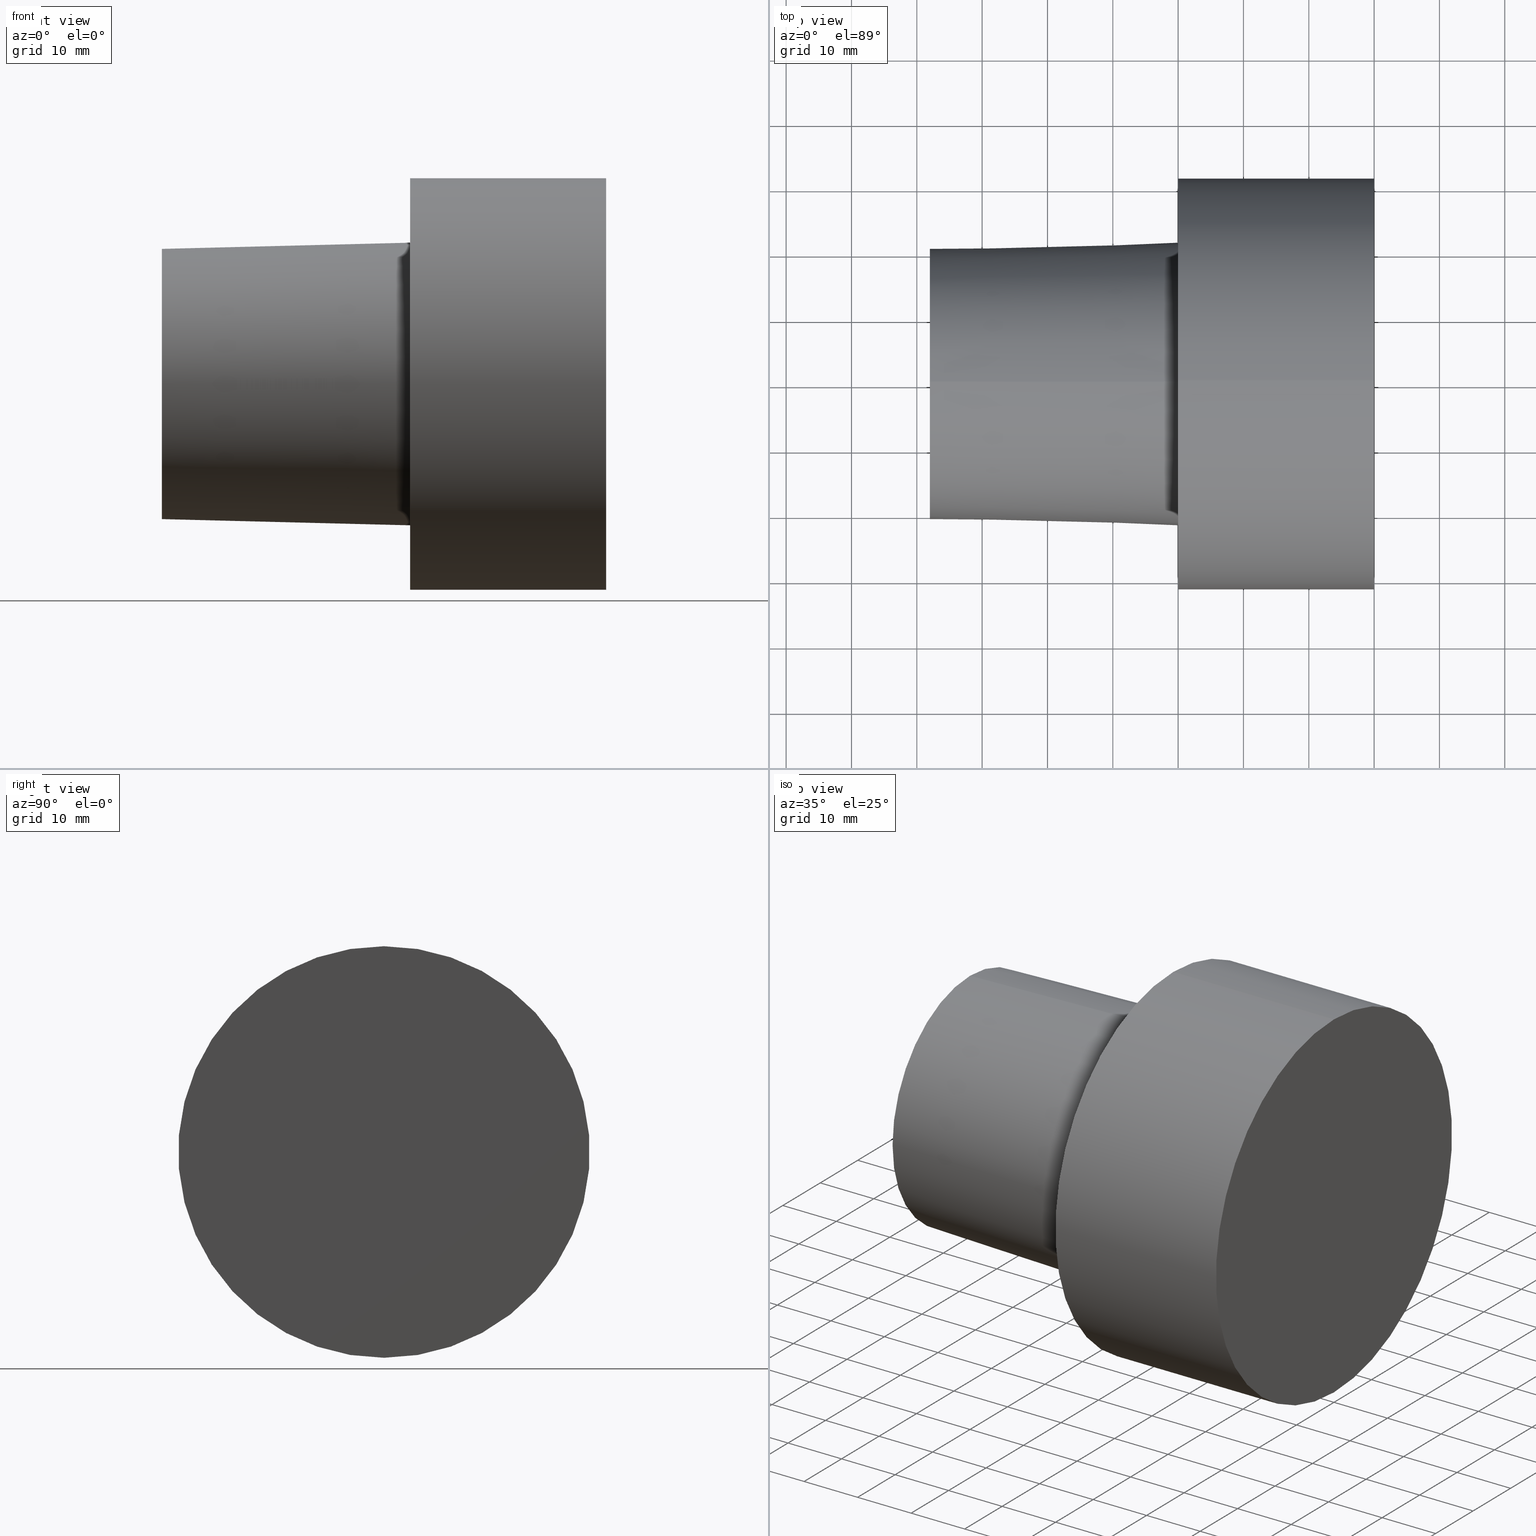
[diagram: canonical four-view strip — front | top / right | iso, engineering-drawing reading convention]
A machine part, canonical four-view strip (front | top / right | iso — engineering-drawing reading convention). The complete STEP part file that produces these views, byte-faithful:
ISO-10303-21;
HEADER;
FILE_DESCRIPTION (( 'STEP AP203' ),
    '1' );
FILE_NAME ('C6-F63-30.stp',
    '2022-03-11T15:30:14',
    ( '' ),
    ( '' ),
    'SwSTEP 2.0',
    'SolidWorks 2021',
    '' );
FILE_SCHEMA (( 'CONFIG_CONTROL_DESIGN' ));
ENDSEC;

DATA;
#1 = VERTEX_POINT ( 'NONE', #129 ) ;
#2 = SHAPE_DEFINITION_REPRESENTATION ( #151, #117 ) ;
#3 = ORIENTED_EDGE ( 'NONE', *, *, #248, .T. ) ;
#4 = DIRECTION ( 'NONE',  ( 1.000000000000000000, 0.000000000000000000, 0.000000000000000000 ) ) ;
#5 = DIRECTION ( 'NONE',  ( -1.000000000000000000, 0.000000000000000000, 0.000000000000000000 ) ) ;
#6 = ORIENTED_EDGE ( 'NONE', *, *, #194, .F. ) ;
#7 = ORIENTED_EDGE ( 'NONE', *, *, #242, .F. ) ;
#8 = DIRECTION ( 'NONE',  ( 0.000000000000000000, 0.000000000000000000, 1.000000000000000000 ) ) ;
#9 = AXIS2_PLACEMENT_3D ( 'NONE', #44, #26, #168 ) ;
#10 = SECURITY_CLASSIFICATION ( '', '', #187 ) ;
#11 = DIRECTION ( 'NONE',  ( 1.000000000000000000, 0.000000000000000000, 0.000000000000000000 ) ) ;
#12 = EDGE_CURVE ( 'NONE', #30, #21, #124, .T. ) ;
#13 = LINE ( 'NONE', #156, #84 ) ;
#14 = CC_DESIGN_PERSON_AND_ORGANIZATION_ASSIGNMENT ( #236, #42, ( #186 ) ) ;
#15 = PLANE ( 'NONE',  #157 ) ;
#16 = CARTESIAN_POINT ( 'NONE',  ( 29.99999996940000102, 0.000000000000000000, 0.000000000000000000 ) ) ;
#17 = DIRECTION ( 'NONE',  ( -1.000000000000000000, 0.000000000000000000, 0.000000000000000000 ) ) ;
#18 = PERSON_AND_ORGANIZATION ( #145, #132 ) ;
#19 = VERTEX_POINT ( 'NONE', #64 ) ;
#20 = PERSON_AND_ORGANIZATION ( #145, #132 ) ;
#21 = VERTEX_POINT ( 'NONE', #206 ) ;
#22 = AXIS2_PLACEMENT_3D ( 'NONE', #27, #113, #191 ) ;
#23 = AXIS2_PLACEMENT_3D ( 'NONE', #217, #99, #34 ) ;
#24 = ADVANCED_FACE ( 'NONE', ( #115 ), #39, .T. ) ;
#25 = CC_DESIGN_PERSON_AND_ORGANIZATION_ASSIGNMENT ( #240, #163, ( #43 ) ) ;
#26 = DIRECTION ( 'NONE',  ( -1.000000000000000000, 0.000000000000000000, 0.000000000000000000 ) ) ;
#27 = CARTESIAN_POINT ( 'NONE',  ( -37.99999996124000035, 20.68052847366897140, 0.000000000000000000 ) ) ;
#28 = LOCAL_TIME ( 9, 30, 14.00000000000000000, #222 ) ;
#29 = ADVANCED_FACE ( 'NONE', ( #69 ), #207, .T. ) ;
#30 = VERTEX_POINT ( 'NONE', #245 ) ;
#31 = ORIENTED_EDGE ( 'NONE', *, *, #190, .F. ) ;
#32 = DIRECTION ( 'NONE',  ( -1.000000000000000000, 0.000000000000000000, 0.000000000000000000 ) ) ;
#33 = CARTESIAN_POINT ( 'NONE',  ( -37.99999996124000035, 0.000000000000000000, 0.000000000000000000 ) ) ;
#34 = DIRECTION ( 'NONE',  ( 0.000000000000000000, 0.000000000000000000, 1.000000000000000000 ) ) ;
#35 = AXIS2_PLACEMENT_3D ( 'NONE', #213, #133, #36 ) ;
#36 = DIRECTION ( 'NONE',  ( 1.000000000000000000, 0.000000000000000000, 0.000000000000000000 ) ) ;
#37 = CARTESIAN_POINT ( 'NONE',  ( 0.000000000000000000, 0.000000000000000000, -21.63061196907898065 ) ) ;
#38 = ORIENTED_EDGE ( 'NONE', *, *, #242, .T. ) ;
#39 = CONICAL_SURFACE ( 'NONE', #46, 21.63061196907898065, 0.02499698951949481940 ) ;
#40 = AXIS2_PLACEMENT_3D ( 'NONE', #16, #17, #76 ) ;
#41 = COORDINATED_UNIVERSAL_TIME_OFFSET ( 6, 0, .BEHIND. ) ;
#42 = PERSON_AND_ORGANIZATION_ROLE ( 'creator' ) ;
#43 = PRODUCT_DEFINITION ( 'UNKNOWN', '', #186, #53 ) ;
#44 = CARTESIAN_POINT ( 'NONE',  ( 0.000000000000000000, 0.000000000000000000, 0.000000000000000000 ) ) ;
#45 = FACE_OUTER_BOUND ( 'NONE', #237, .T. ) ;
#46 = AXIS2_PLACEMENT_3D ( 'NONE', #116, #4, #247 ) ;
#47 = ORIENTED_EDGE ( 'NONE', *, *, #202, .T. ) ;
#48 = CC_DESIGN_DATE_AND_TIME_ASSIGNMENT ( #109, #81, ( #43 ) ) ;
#49 = PLANE ( 'NONE',  #180 ) ;
#50 = ORIENTED_EDGE ( 'NONE', *, *, #202, .F. ) ;
#51 = AXIS2_PLACEMENT_3D ( 'NONE', #249, #32, #127 ) ;
#52 = DIRECTION ( 'NONE',  ( 0.9996875915253454759, 0.000000000000000000, -0.02499438637482059161 ) ) ;
#53 = DESIGN_CONTEXT ( 'detailed design', #79, 'design' ) ;
#54 = DIRECTION ( 'NONE',  ( 0.9996875915253454759, 3.060929527057623083E-18, 0.02499438637482059161 ) ) ;
#55 = LOCAL_TIME ( 9, 30, 14.00000000000000000, #139 ) ;
#56 = CARTESIAN_POINT ( 'NONE',  ( 0.000000000000000000, 0.000000000000000000, 0.000000000000000000 ) ) ;
#57 = APPLICATION_PROTOCOL_DEFINITION ( 'international standard', 'config_control_design', 1994, #79 ) ;
#58 = UNCERTAINTY_MEASURE_WITH_UNIT (LENGTH_MEASURE( 1.000000000000000082E-05 ), #153, 'distance_accuracy_value', 'NONE');
#59 = PERSON_AND_ORGANIZATION ( #145, #132 ) ;
#60 = ORIENTED_EDGE ( 'NONE', *, *, #12, .T. ) ;
#61 = DATE_AND_TIME ( #223, #63 ) ;
#62 = PERSON_AND_ORGANIZATION ( #145, #132 ) ;
#63 = LOCAL_TIME ( 9, 30, 14.00000000000000000, #221 ) ;
#64 = CARTESIAN_POINT ( 'NONE',  ( 0.000000000000000000, 0.000000000000000000, 31.49999996787000001 ) ) ;
#65 = APPLICATION_CONTEXT ( 'configuration controlled 3d designs of mechanical parts and assemblies' ) ;
#66 = DIRECTION ( 'NONE',  ( -1.000000000000000000, 0.000000000000000000, 0.000000000000000000 ) ) ;
#67 = LINE ( 'NONE', #147, #107 ) ;
#68 = AXIS2_PLACEMENT_3D ( 'NONE', #166, #66, #146 ) ;
#69 = FACE_OUTER_BOUND ( 'NONE', #226, .T. ) ;
#70 = EDGE_CURVE ( 'NONE', #19, #205, #204, .T. ) ;
#71 = ORIENTED_EDGE ( 'NONE', *, *, #101, .F. ) ;
#72 = CARTESIAN_POINT ( 'NONE',  ( 29.99999996940000102, 3.857637413379370248E-15, -31.49999996787000001 ) ) ;
#73 =( NAMED_UNIT ( * ) SI_UNIT ( $, .STERADIAN. ) SOLID_ANGLE_UNIT ( ) );
#74 = APPROVAL_PERSON_ORGANIZATION ( #18, #143, #104 ) ;
#75 = LINE ( 'NONE', #37, #227 ) ;
#76 = DIRECTION ( 'NONE',  ( 0.000000000000000000, 0.000000000000000000, 1.000000000000000000 ) ) ;
#77 = CALENDAR_DATE ( 2022, 11, 3 ) ;
#78 = COORDINATED_UNIVERSAL_TIME_OFFSET ( 6, 0, .BEHIND. ) ;
#79 = APPLICATION_CONTEXT ( 'configuration controlled 3d designs of mechanical parts and assemblies' ) ;
#80 = ORIENTED_EDGE ( 'NONE', *, *, #248, .F. ) ;
#81 = DATE_TIME_ROLE ( 'creation_date' ) ;
#82 = ADVANCED_FACE ( 'NONE', ( #45 ), #49, .F. ) ;
#83 = AXIS2_PLACEMENT_3D ( 'NONE', #193, #5, #89 ) ;
#84 = VECTOR ( 'NONE', #252, 1000.000000000000000 ) ;
#85 = CALENDAR_DATE ( 2022, 11, 3 ) ;
#86 = APPROVAL_STATUS ( 'not_yet_approved' ) ;
#87 = EDGE_LOOP ( 'NONE', ( #6, #167, #60, #50 ) ) ;
#88 = DIRECTION ( 'NONE',  ( -1.000000000000000000, 0.000000000000000000, 0.000000000000000000 ) ) ;
#89 = DIRECTION ( 'NONE',  ( 0.000000000000000000, 0.000000000000000000, 1.000000000000000000 ) ) ;
#90 = EDGE_LOOP ( 'NONE', ( #148, #71, #47, #208 ) ) ;
#91 = CC_DESIGN_PERSON_AND_ORGANIZATION_ASSIGNMENT ( #218, #140, ( #224 ) ) ;
#92 = PLANE ( 'NONE',  #22 ) ;
#93 = AXIS2_PLACEMENT_3D ( 'NONE', #33, #214, #100 ) ;
#94 = CC_DESIGN_PERSON_AND_ORGANIZATION_ASSIGNMENT ( #141, #179, ( #10 ) ) ;
#95 = LINE ( 'NONE', #120, #169 ) ;
#96 = FACE_OUTER_BOUND ( 'NONE', #144, .T. ) ;
#97 = DIRECTION ( 'NONE',  ( 0.000000000000000000, 0.000000000000000000, -1.000000000000000000 ) ) ;
#98 = CIRCLE ( 'NONE', #83, 20.68052847366897140 ) ;
#99 = DIRECTION ( 'NONE',  ( -1.000000000000000000, 0.000000000000000000, 0.000000000000000000 ) ) ;
#100 = DIRECTION ( 'NONE',  ( 0.000000000000000000, 0.000000000000000000, 1.000000000000000000 ) ) ;
#101 = EDGE_CURVE ( 'NONE', #170, #138, #98, .T. ) ;
#102 = APPROVAL_DATE_TIME ( #137, #210 ) ;
#103 = ORIENTED_EDGE ( 'NONE', *, *, #114, .T. ) ;
#104 = APPROVAL_ROLE ( '' ) ;
#105 = ORIENTED_EDGE ( 'NONE', *, *, #194, .T. ) ;
#106 = PERSON_AND_ORGANIZATION_ROLE ( 'design_supplier' ) ;
#107 = VECTOR ( 'NONE', #196, 1000.000000000000000 ) ;
#108 = CIRCLE ( 'NONE', #122, 31.49999996787000001 ) ;
#109 = DATE_AND_TIME ( #85, #135 ) ;
#110 = ORIENTED_EDGE ( 'NONE', *, *, #101, .T. ) ;
#111 = CIRCLE ( 'NONE', #68, 31.49999996787000001 ) ;
#112 = CC_DESIGN_PERSON_AND_ORGANIZATION_ASSIGNMENT ( #62, #106, ( #186 ) ) ;
#113 = DIRECTION ( 'NONE',  ( 1.000000000000000000, 0.000000000000000000, 0.000000000000000000 ) ) ;
#114 = EDGE_CURVE ( 'NONE', #228, #1, #111, .T. ) ;
#115 = FACE_OUTER_BOUND ( 'NONE', #90, .T. ) ;
#116 = CARTESIAN_POINT ( 'NONE',  ( 0.000000000000000000, 0.000000000000000000, 0.000000000000000000 ) ) ;
#117 = ADVANCED_BREP_SHAPE_REPRESENTATION ( 'C6-F63-30', ( #232, #35 ), #212 ) ;
#118 = DIRECTION ( 'NONE',  ( 0.000000000000000000, 0.000000000000000000, 1.000000000000000000 ) ) ;
#119 = CARTESIAN_POINT ( 'NONE',  ( 0.000000000000000000, 0.000000000000000000, 0.000000000000000000 ) ) ;
#120 = CARTESIAN_POINT ( 'NONE',  ( 0.000000000000000000, 2.648985971153096932E-15, 21.63061196907898065 ) ) ;
#121 = APPROVAL_ROLE ( '' ) ;
#122 = AXIS2_PLACEMENT_3D ( 'NONE', #119, #155, #230 ) ;
#123 = DATE_AND_TIME ( #243, #55 ) ;
#124 = CIRCLE ( 'NONE', #51, 21.63061196907898065 ) ;
#125 = CC_DESIGN_APPROVAL ( #143, ( #186 ) ) ;
#126 = ADVANCED_FACE ( 'NONE', ( #128 ), #92, .F. ) ;
#127 = DIRECTION ( 'NONE',  ( 0.000000000000000000, 0.000000000000000000, 1.000000000000000000 ) ) ;
#128 = FACE_OUTER_BOUND ( 'NONE', #182, .T. ) ;
#129 = CARTESIAN_POINT ( 'NONE',  ( 29.99999996940000102, 0.000000000000000000, 31.49999996787000001 ) ) ;
#130 = DIRECTION ( 'NONE',  ( -1.000000000000000000, 0.000000000000000000, 0.000000000000000000 ) ) ;
#131 = EDGE_LOOP ( 'NONE', ( #239, #38 ) ) ;
#132 = ORGANIZATION ( 'UNSPECIFIED', 'UNSPECIFIED', '' ) ;
#133 = DIRECTION ( 'NONE',  ( 0.000000000000000000, 0.000000000000000000, 1.000000000000000000 ) ) ;
#134 = EDGE_CURVE ( 'NONE', #1, #19, #67, .T. ) ;
#135 = LOCAL_TIME ( 9, 30, 14.00000000000000000, #78 ) ;
#136 = DIRECTION ( 'NONE',  ( 1.000000000000000000, 0.000000000000000000, 0.000000000000000000 ) ) ;
#137 = DATE_AND_TIME ( #220, #158 ) ;
#138 = VERTEX_POINT ( 'NONE', #198 ) ;
#139 = COORDINATED_UNIVERSAL_TIME_OFFSET ( 6, 0, .BEHIND. ) ;
#140 = PERSON_AND_ORGANIZATION_ROLE ( 'design_owner' ) ;
#141 = PERSON_AND_ORGANIZATION ( #145, #132 ) ;
#142 = CLOSED_SHELL ( 'NONE', ( #233, #176, #24, #126, #82, #171, #29 ) ) ;
#143 = APPROVAL ( #86, 'UNSPECIFIED' ) ;
#144 = EDGE_LOOP ( 'NONE', ( #80, #103, #183, #7 ) ) ;
#145 = PERSON ( 'UNSPECIFIED', 'UNSPECIFIED', 'UNSPECIFIED', ('UNSPECIFIED'), ('UNSPECIFIED'), ('UNSPECIFIED') ) ;
#146 = DIRECTION ( 'NONE',  ( 0.000000000000000000, 0.000000000000000000, 1.000000000000000000 ) ) ;
#147 = CARTESIAN_POINT ( 'NONE',  ( -37.99999996124000035, 0.000000000000000000, 31.49999996787000001 ) ) ;
#148 = ORIENTED_EDGE ( 'NONE', *, *, #154, .F. ) ;
#149 = EDGE_LOOP ( 'NONE', ( #209, #160 ) ) ;
#150 = FACE_OUTER_BOUND ( 'NONE', #87, .T. ) ;
#151 = PRODUCT_DEFINITION_SHAPE ( 'NONE', 'NONE',  #43 ) ;
#152 = MECHANICAL_CONTEXT ( 'NONE', #65, 'mechanical' ) ;
#153 =( LENGTH_UNIT ( ) NAMED_UNIT ( * ) SI_UNIT ( .MILLI., .METRE. ) );
#154 = EDGE_CURVE ( 'NONE', #138, #30, #95, .T. ) ;
#155 = DIRECTION ( 'NONE',  ( -1.000000000000000000, 0.000000000000000000, 0.000000000000000000 ) ) ;
#156 = CARTESIAN_POINT ( 'NONE',  ( -37.99999996124000035, 3.857637413379370248E-15, -31.49999996787000001 ) ) ;
#157 = AXIS2_PLACEMENT_3D ( 'NONE', #175, #136, #173 ) ;
#158 = LOCAL_TIME ( 9, 30, 14.00000000000000000, #41 ) ;
#159 = APPROVAL_DATE_TIME ( #123, #143 ) ;
#160 = ORIENTED_EDGE ( 'NONE', *, *, #12, .F. ) ;
#161 = CONICAL_SURFACE ( 'NONE', #197, 21.63061196907898065, 0.02499698951949481940 ) ;
#162 = DATE_TIME_ROLE ( 'classification_date' ) ;
#163 = PERSON_AND_ORGANIZATION_ROLE ( 'creator' ) ;
#164 = DIRECTION ( 'NONE',  ( 0.000000000000000000, 0.000000000000000000, 1.000000000000000000 ) ) ;
#165 = CIRCLE ( 'NONE', #40, 31.49999996787000001 ) ;
#166 = CARTESIAN_POINT ( 'NONE',  ( 29.99999996940000102, 0.000000000000000000, 0.000000000000000000 ) ) ;
#167 = ORIENTED_EDGE ( 'NONE', *, *, #154, .T. ) ;
#168 = DIRECTION ( 'NONE',  ( 0.000000000000000000, 0.000000000000000000, 1.000000000000000000 ) ) ;
#169 = VECTOR ( 'NONE', #54, 1000.000000000000114 ) ;
#170 = VERTEX_POINT ( 'NONE', #234 ) ;
#171 = ADVANCED_FACE ( 'NONE', ( #150 ), #161, .T. ) ;
#172 = FACE_OUTER_BOUND ( 'NONE', #131, .T. ) ;
#173 = DIRECTION ( 'NONE',  ( 0.000000000000000000, 1.000000000000000000, 0.000000000000000000 ) ) ;
#174 = AXIS2_PLACEMENT_3D ( 'NONE', #253, #195, #118 ) ;
#175 = CARTESIAN_POINT ( 'NONE',  ( 0.000000000000000000, 31.49999996787000001, 0.000000000000000000 ) ) ;
#176 = ADVANCED_FACE ( 'NONE', ( #178, #172 ), #15, .F. ) ;
#177 = CYLINDRICAL_SURFACE ( 'NONE', #93, 31.49999996787000001 ) ;
#178 = FACE_BOUND ( 'NONE', #149, .T. ) ;
#179 = PERSON_AND_ORGANIZATION_ROLE ( 'classification_officer' ) ;
#180 = AXIS2_PLACEMENT_3D ( 'NONE', #188, #130, #8 ) ;
#181 = APPROVAL_PERSON_ORGANIZATION ( #59, #210, #121 ) ;
#182 = EDGE_LOOP ( 'NONE', ( #110, #105 ) ) ;
#183 = ORIENTED_EDGE ( 'NONE', *, *, #134, .T. ) ;
#184 = APPROVAL_STATUS ( 'not_yet_approved' ) ;
#185 = AXIS2_PLACEMENT_3D ( 'NONE', #225, #88, #164 ) ;
#186 = PRODUCT_DEFINITION_FORMATION_WITH_SPECIFIED_SOURCE ( 'ANY', '', #224, .NOT_KNOWN. ) ;
#187 = SECURITY_CLASSIFICATION_LEVEL ( 'unclassified' ) ;
#188 = CARTESIAN_POINT ( 'NONE',  ( 29.99999996940000102, 0.000000000000000000, 0.000000000000000000 ) ) ;
#189 = CIRCLE ( 'NONE', #174, 21.63061196907898065 ) ;
#190 = EDGE_CURVE ( 'NONE', #1, #228, #165, .T. ) ;
#191 = DIRECTION ( 'NONE',  ( 0.000000000000000000, 1.000000000000000000, 0.000000000000000000 ) ) ;
#192 = ORIENTED_EDGE ( 'NONE', *, *, #134, .F. ) ;
#193 = CARTESIAN_POINT ( 'NONE',  ( -37.99999996124000035, 0.000000000000000000, 0.000000000000000000 ) ) ;
#194 = EDGE_CURVE ( 'NONE', #138, #170, #250, .T. ) ;
#195 = DIRECTION ( 'NONE',  ( -1.000000000000000000, 0.000000000000000000, 0.000000000000000000 ) ) ;
#196 = DIRECTION ( 'NONE',  ( -1.000000000000000000, 0.000000000000000000, 0.000000000000000000 ) ) ;
#197 = AXIS2_PLACEMENT_3D ( 'NONE', #56, #11, #97 ) ;
#198 = CARTESIAN_POINT ( 'NONE',  ( -37.99999996124000035, 2.590810135574270981E-15, 20.68052847366897140 ) ) ;
#199 = DATE_AND_TIME ( #77, #28 ) ;
#200 = ORIENTED_EDGE ( 'NONE', *, *, #190, .T. ) ;
#201 = APPROVAL_DATE_TIME ( #199, #254 ) ;
#202 = EDGE_CURVE ( 'NONE', #170, #21, #75, .T. ) ;
#203 = APPROVAL_ROLE ( '' ) ;
#204 = CIRCLE ( 'NONE', #9, 31.49999996787000001 ) ;
#205 = VERTEX_POINT ( 'NONE', #251 ) ;
#206 = CARTESIAN_POINT ( 'NONE',  ( 0.000000000000000000, 0.000000000000000000, -21.63061196907898065 ) ) ;
#207 = CYLINDRICAL_SURFACE ( 'NONE', #185, 31.49999996787000001 ) ;
#208 = ORIENTED_EDGE ( 'NONE', *, *, #244, .T. ) ;
#209 = ORIENTED_EDGE ( 'NONE', *, *, #244, .F. ) ;
#210 = APPROVAL ( #184, 'UNSPECIFIED' ) ;
#211 = CC_DESIGN_SECURITY_CLASSIFICATION ( #10, ( #186 ) ) ;
#212 =( GEOMETRIC_REPRESENTATION_CONTEXT ( 3 ) GLOBAL_UNCERTAINTY_ASSIGNED_CONTEXT ( ( #58 ) ) GLOBAL_UNIT_ASSIGNED_CONTEXT ( ( #153, #231, #73 ) ) REPRESENTATION_CONTEXT ( 'NONE', 'WORKASPACE' ) );
#213 = CARTESIAN_POINT ( 'NONE',  ( 0.000000000000000000, 0.000000000000000000, 0.000000000000000000 ) ) ;
#214 = DIRECTION ( 'NONE',  ( -1.000000000000000000, 0.000000000000000000, 0.000000000000000000 ) ) ;
#215 = CC_DESIGN_APPROVAL ( #210, ( #10 ) ) ;
#216 = APPLICATION_PROTOCOL_DEFINITION ( 'international standard', 'config_control_design', 1994, #65 ) ;
#217 = CARTESIAN_POINT ( 'NONE',  ( -37.99999996124000035, 0.000000000000000000, 0.000000000000000000 ) ) ;
#218 = PERSON_AND_ORGANIZATION ( #145, #132 ) ;
#219 = ORIENTED_EDGE ( 'NONE', *, *, #114, .F. ) ;
#220 = CALENDAR_DATE ( 2022, 11, 3 ) ;
#221 = COORDINATED_UNIVERSAL_TIME_OFFSET ( 6, 0, .BEHIND. ) ;
#222 = COORDINATED_UNIVERSAL_TIME_OFFSET ( 6, 0, .BEHIND. ) ;
#223 = CALENDAR_DATE ( 2022, 11, 3 ) ;
#224 = PRODUCT ( 'C6-F63-30', 'C6-F63-30', '', ( #152 ) ) ;
#225 = CARTESIAN_POINT ( 'NONE',  ( -37.99999996124000035, 0.000000000000000000, 0.000000000000000000 ) ) ;
#226 = EDGE_LOOP ( 'NONE', ( #200, #3, #229, #192 ) ) ;
#227 = VECTOR ( 'NONE', #52, 1000.000000000000114 ) ;
#228 = VERTEX_POINT ( 'NONE', #72 ) ;
#229 = ORIENTED_EDGE ( 'NONE', *, *, #70, .F. ) ;
#230 = DIRECTION ( 'NONE',  ( 0.000000000000000000, 0.000000000000000000, 1.000000000000000000 ) ) ;
#231 =( NAMED_UNIT ( * ) PLANE_ANGLE_UNIT ( ) SI_UNIT ( $, .RADIAN. ) );
#232 = MANIFOLD_SOLID_BREP ( 'Scale1', #142 ) ;
#233 = ADVANCED_FACE ( 'NONE', ( #96 ), #177, .T. ) ;
#234 = CARTESIAN_POINT ( 'NONE',  ( -37.99999996124000035, 0.000000000000000000, -20.68052847366897140 ) ) ;
#235 = PRODUCT_RELATED_PRODUCT_CATEGORY ( 'detail', '', ( #224 ) ) ;
#236 = PERSON_AND_ORGANIZATION ( #145, #132 ) ;
#237 = EDGE_LOOP ( 'NONE', ( #31, #219 ) ) ;
#238 = APPROVAL_STATUS ( 'not_yet_approved' ) ;
#239 = ORIENTED_EDGE ( 'NONE', *, *, #70, .T. ) ;
#240 = PERSON_AND_ORGANIZATION ( #145, #132 ) ;
#241 = APPROVAL_PERSON_ORGANIZATION ( #20, #254, #203 ) ;
#242 = EDGE_CURVE ( 'NONE', #205, #19, #108, .T. ) ;
#243 = CALENDAR_DATE ( 2022, 11, 3 ) ;
#244 = EDGE_CURVE ( 'NONE', #21, #30, #189, .T. ) ;
#245 = CARTESIAN_POINT ( 'NONE',  ( 0.000000000000000000, 2.648985971153096932E-15, 21.63061196907898065 ) ) ;
#246 = CC_DESIGN_APPROVAL ( #254, ( #43 ) ) ;
#247 = DIRECTION ( 'NONE',  ( 0.000000000000000000, 0.000000000000000000, -1.000000000000000000 ) ) ;
#248 = EDGE_CURVE ( 'NONE', #228, #205, #13, .T. ) ;
#249 = CARTESIAN_POINT ( 'NONE',  ( 0.000000000000000000, 0.000000000000000000, 0.000000000000000000 ) ) ;
#250 = CIRCLE ( 'NONE', #23, 20.68052847366897140 ) ;
#251 = CARTESIAN_POINT ( 'NONE',  ( 0.000000000000000000, 3.857637413379370248E-15, -31.49999996787000001 ) ) ;
#252 = DIRECTION ( 'NONE',  ( -1.000000000000000000, 0.000000000000000000, 0.000000000000000000 ) ) ;
#253 = CARTESIAN_POINT ( 'NONE',  ( 0.000000000000000000, 0.000000000000000000, 0.000000000000000000 ) ) ;
#254 = APPROVAL ( #238, 'UNSPECIFIED' ) ;
#255 = CC_DESIGN_DATE_AND_TIME_ASSIGNMENT ( #61, #162, ( #10 ) ) ;
ENDSEC;
END-ISO-10303-21;
